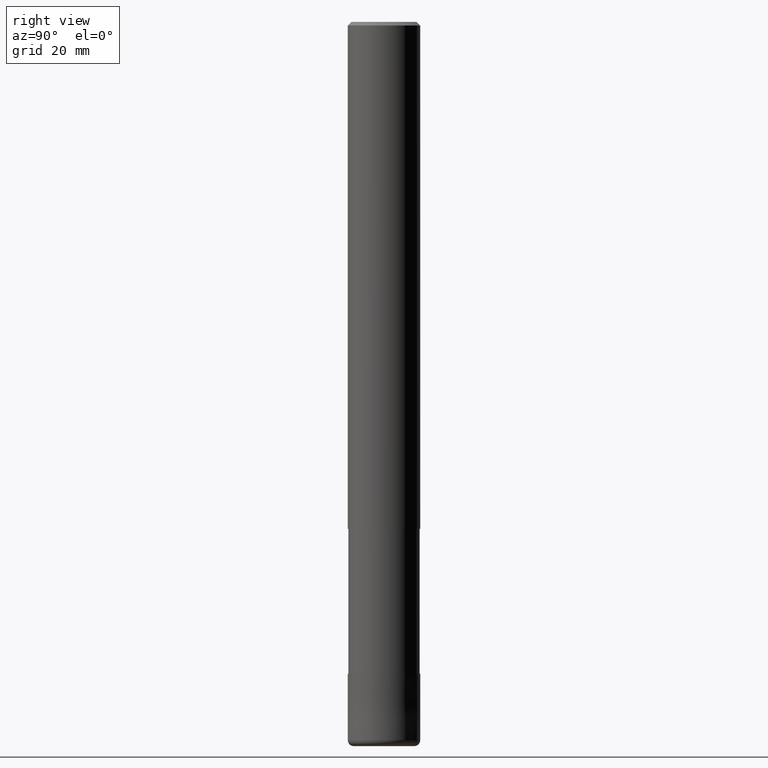
[diagram: clean part render]
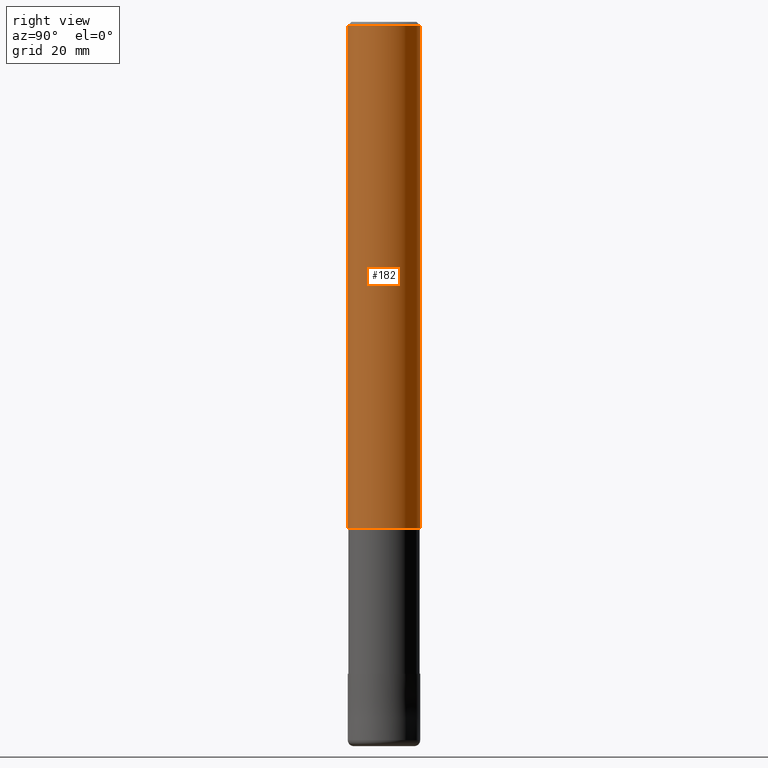
[diagram: same view with one face highlighted and labeled with its STEP entity id]
A machine part, right view. The second image highlights one B-rep face of the part: STEP entity #182.
In plain terms, the highlighted cylindrical surface (edge-blend (fillet) strip) has radius 6 mm, axis along (-0, -0, 1).
Its self-contained STEP definition (entity closure, byte-faithful):
#96=EDGE_CURVE('',#98,#120,#233,.T.);
#98=VERTEX_POINT('',#235);
#116=VERTEX_POINT('',#255);
#120=VERTEX_POINT('',#261);
#142=VERTEX_POINT('',#287);
#154=EDGE_CURVE('',#116,#120,#300,.T.);
#180=EDGE_CURVE('',#98,#142,#329,.T.);
#182=ADVANCED_FACE('',(#331),#332,.T.);
#184=EDGE_CURVE('',#142,#116,#334,.T.);
#233=CIRCLE('',#381,6.0);
#235=CARTESIAN_POINT('',(0.0,6.0,-0.599999999999994));
#255=CARTESIAN_POINT('',(7.34763812293426E-016,-6.0,-84.0));
#261=CARTESIAN_POINT('',(7.34763812293426E-016,-6.0,-0.599999999999994));
#287=CARTESIAN_POINT('',(0.0,6.0,-84.0));
#300=LINE('',#460,#461);
#329=LINE('',#497,#498);
#331=FACE_OUTER_BOUND('',#500,.T.);
#332=CYLINDRICAL_SURFACE('',#501,6.0);
#334=CIRCLE('',#504,6.0);
#381=AXIS2_PLACEMENT_3D('',#546,#547,#548);
#460=CARTESIAN_POINT('',(7.34763812293426E-016,-6.0,-42.3));
#461=VECTOR('',#629,1.0);
#497=CARTESIAN_POINT('',(-7.34763812293426E-016,6.0,-42.3));
#498=VECTOR('',#666,1.0);
#500=EDGE_LOOP('',(#668,#669,#670,#671));
#501=AXIS2_PLACEMENT_3D('',#672,#673,#674);
#504=AXIS2_PLACEMENT_3D('',#675,#676,#677);
#546=CARTESIAN_POINT('',(0.0,0.0,-0.599999999999994));
#547=DIRECTION('',(0.0,0.0,-1.0));
#548=DIRECTION('',(0.0,1.0,0.0));
#629=DIRECTION('',(-0.0,-0.0,1.0));
#666=DIRECTION('',(0.0,0.0,-1.0));
#668=ORIENTED_EDGE('',*,*,#180,.F.);
#669=ORIENTED_EDGE('',*,*,#96,.T.);
#670=ORIENTED_EDGE('',*,*,#154,.F.);
#671=ORIENTED_EDGE('',*,*,#184,.F.);
#672=CARTESIAN_POINT('',(0.0,0.0,-42.3));
#673=DIRECTION('',(-0.0,-0.0,1.0));
#674=DIRECTION('',(0.0,1.0,0.0));
#675=CARTESIAN_POINT('',(0.0,0.0,-84.0));
#676=DIRECTION('',(0.0,0.0,-1.0));
#677=DIRECTION('',(0.0,1.0,0.0));